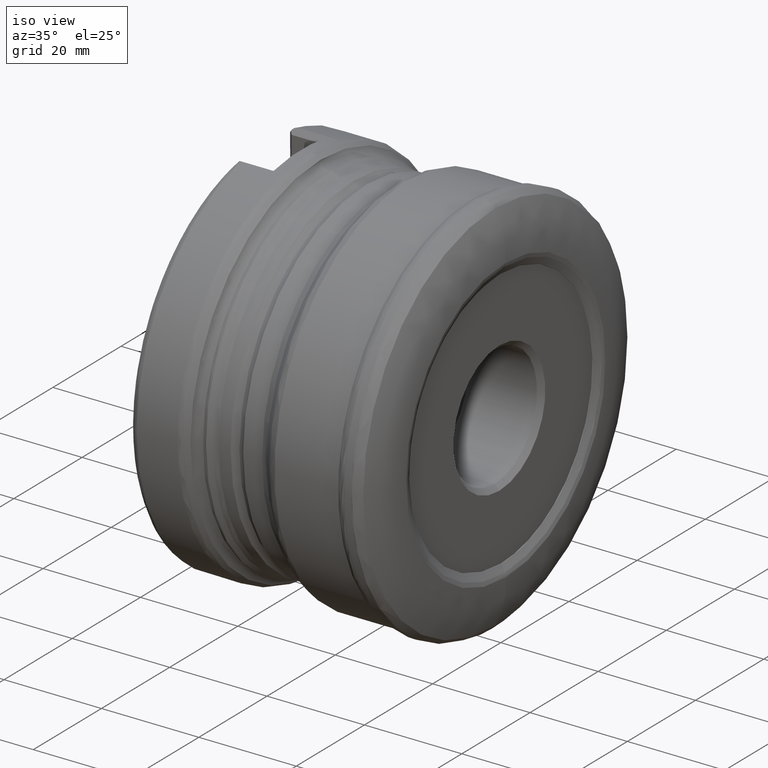
[diagram: clean part render]
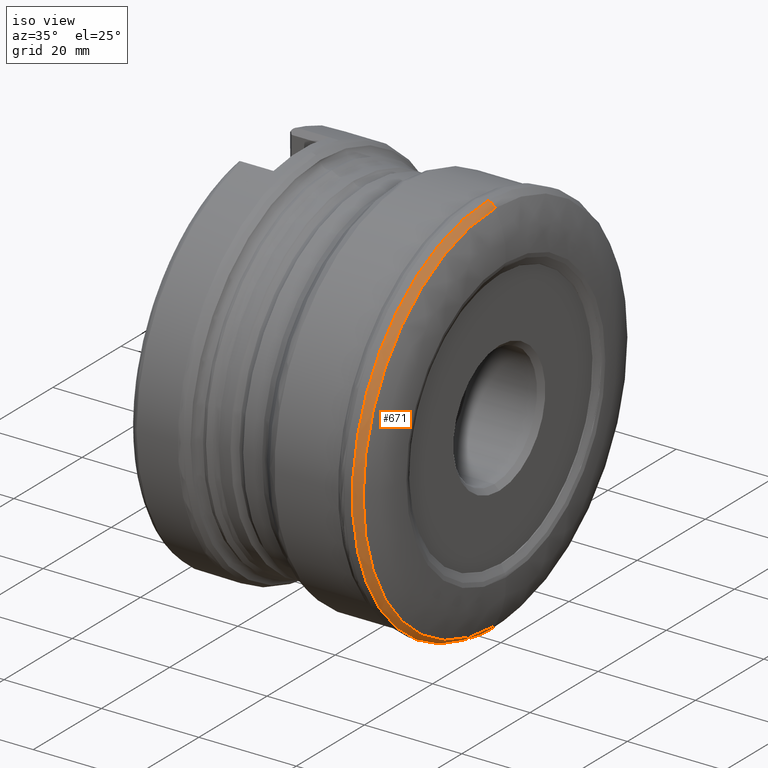
[diagram: same view with one face highlighted and labeled with its STEP entity id]
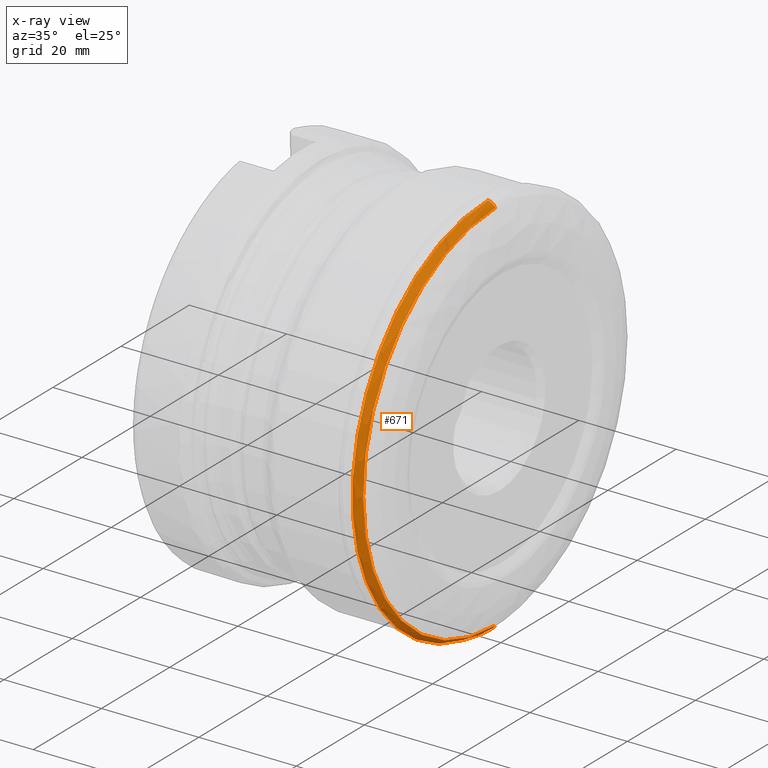
[diagram: x-ray of the same camera — body ghosted, the highlighted face saturated]
A machine part, iso view. The second image highlights one B-rep face of the part: STEP entity #671.
The next image is the same camera in x-ray: the body ghosted, the highlighted face saturated — about 0% of this face is hidden behind the body in this view.
In plain terms, the highlighted face is a freeform B-spline surface patch.
Its self-contained STEP definition (entity closure, byte-faithful):
#137 = CARTESIAN_POINT ( 'NONE',  ( -2.633229503952312800, 0.0000000000000000000, -39.73581911877664700 ) ) ;
#157 = CARTESIAN_POINT ( 'NONE',  ( -1.134146960454002400, 0.0000000000000000000, 0.0000000000000000000 ) ) ;
#170 = DIRECTION ( 'NONE',  ( -1.000000000000000000, 8.391831888434152500E-018, -0.0000000000000000000 ) ) ;
#190 = DIRECTION ( 'NONE',  ( -5.594554592330477600E-018, -1.000000000000000000, 0.0000000000000000000 ) ) ;
#201 = CARTESIAN_POINT ( 'NONE',  ( -2.032839467000000100, 0.0000000000000000000, -39.74618354500000800 ) ) ;
#214 = EDGE_LOOP ( 'NONE', ( #1904, #315, #2088, #1975 ) ) ;
#215 = VERTEX_POINT ( 'NONE', #1797 ) ;
#315 = ORIENTED_EDGE ( 'NONE', *, *, #1644, .T. ) ;
#433 = CARTESIAN_POINT ( 'NONE',  ( -2.827194771000000700, -79.49062436400004100, -39.74531218200002100 ) ) ;
#458 = CARTESIAN_POINT ( 'NONE',  ( -2.633229503964266800, 0.0000000000000000000, 0.0000000000000000000 ) ) ;
#470 = DIRECTION ( 'NONE',  ( -1.000000000000000000, 5.457052083158121700E-018, -0.0000000000000000000 ) ) ;
#477 = DIRECTION ( 'NONE',  ( -1.091410416625564900E-017, -1.000000000000000000, 0.0000000000000000000 ) ) ;
#528 = VERTEX_POINT ( 'NONE', #1486 ) ;
#643 = CIRCLE ( 'NONE', #733, 38.75919537801372200 ) ;
#671 = ADVANCED_FACE ( 'NONE', ( #1232 ), #1772, .T. ) ;
#733 = AXIS2_PLACEMENT_3D ( 'NONE', #157, #170, #190 ) ;
#786 = CARTESIAN_POINT ( 'NONE',  ( -1.991726685368774500, 0.0000000000000000000, 39.67216484230573300 ) ) ;
#850 = EDGE_CURVE ( 'NONE', #2416, #528, #2346, .T. ) ;
#975 = CARTESIAN_POINT ( 'NONE',  ( -2.633229503954305400, 0.0000000000000000000, 39.73581911878244500 ) ) ;
#1019 = CARTESIAN_POINT ( 'NONE',  ( -2.032839466999999600, -79.49236709000000200, -39.74618354500000100 ) ) ;
#1043 = AXIS2_PLACEMENT_3D ( 'NONE', #458, #470, #477 ) ;
#1224 = CARTESIAN_POINT ( 'NONE',  ( -1.451587148078123300, 0.0000000000000000000, 39.32027421612119200 ) ) ;
#1232 = FACE_OUTER_BOUND ( 'NONE', #214, .T. ) ;
#1233 = CARTESIAN_POINT ( 'NONE',  ( -1.134146961259572700, 0.0000000000000000000, 38.75919537912700000 ) ) ;
#1255 = CARTESIAN_POINT ( 'NONE',  ( -2.032839466999999600, -79.49236709000000200, 39.74618354500000100 ) ) ;
#1292 = CARTESIAN_POINT ( 'NONE',  ( -2.827194771000000700, 0.0000000000000000000, 39.74531218200002100 ) ) ;
#1305 = CARTESIAN_POINT ( 'NONE',  ( -2.827194771000000700, -79.49062436400004100, 39.74531218200002100 ) ) ;
#1486 = CARTESIAN_POINT ( 'NONE',  ( -1.134146961259572700, 0.0000000000000000000, 38.75919537912700000 ) ) ;
#1644 = EDGE_CURVE ( 'NONE', #215, #528, #643, .T. ) ;
#1663 = VERTEX_POINT ( 'NONE', #137 ) ;
#1772 =( BOUNDED_SURFACE ( )  B_SPLINE_SURFACE ( 3, 3, ( 
 ( #2554, #2510, #2563, #2733 ),
 ( #2744, #2758, #2769, #2780 ),
 ( #2788, #1255, #1019, #201 ),
 ( #1292, #1305, #433, #2549 ) ),
 .UNSPECIFIED., .F., .F., .F. ) 
 B_SPLINE_SURFACE_WITH_KNOTS ( ( 4, 4 ),
 ( 4, 4 ),
 ( 0.0000000000000000000, 1.000000000000000000 ),
 ( 0.0000000000000000000, 1.000000000000000000 ),
 .UNSPECIFIED. ) 
 GEOMETRIC_REPRESENTATION_ITEM ( )  RATIONAL_B_SPLINE_SURFACE ( (
 ( 1.000000000000000000, 0.3333333333333330400, 0.3333333333333330400, 1.000000000000000000),
 ( 0.8915179184014110400, 0.2971726394671370100, 0.2971726394671370100, 0.8915179184014110400),
 ( 0.8915179184014110400, 0.2971726394671370100, 0.2971726394671370100, 0.8915179184014110400),
 ( 1.000000000000000000, 0.3333333333333330400, 0.3333333333333330400, 1.000000000000000000) ) ) 
 REPRESENTATION_ITEM ( '' )  SURFACE ( )  );
#1797 = CARTESIAN_POINT ( 'NONE',  ( -1.134146961420686500, 0.0000000000000000000, -38.75919537934964900 ) ) ;
#1904 = ORIENTED_EDGE ( 'NONE', *, *, #2603, .F. ) ;
#1975 = ORIENTED_EDGE ( 'NONE', *, *, #2066, .F. ) ;
#2066 = EDGE_CURVE ( 'NONE', #1663, #2416, #2651, .T. ) ;
#2088 = ORIENTED_EDGE ( 'NONE', *, *, #850, .F. ) ;
#2177 = CARTESIAN_POINT ( 'NONE',  ( -2.633229503952312800, 0.0000000000000000000, -39.73581911877664700 ) ) ;
#2185 = CARTESIAN_POINT ( 'NONE',  ( -1.991726685473085700, 0.0000000000000000000, -39.67216484231521200 ) ) ;
#2193 = CARTESIAN_POINT ( 'NONE',  ( -1.134146961420686500, 0.0000000000000000000, -38.75919537934964900 ) ) ;
#2215 = CARTESIAN_POINT ( 'NONE',  ( -1.451587148242542200, 0.0000000000000000000, -39.32027421622774500 ) ) ;
#2346 =( BOUNDED_CURVE ( )  B_SPLINE_CURVE ( 3, ( #975, #786, #1224, #1233 ),
 .UNSPECIFIED., .F., .F. ) 
 B_SPLINE_CURVE_WITH_KNOTS ( ( 4, 4 ),
 ( 0.09017789999648592700, 0.9098220993743823000 ),
 .UNSPECIFIED. ) 
 CURVE ( )  GEOMETRIC_REPRESENTATION_ITEM ( )  RATIONAL_B_SPLINE_CURVE ( ( 0.9732984874047218000, 0.9004184226557772100, 0.9004184225998368400, 0.9732984872369010400 ) ) 
 REPRESENTATION_ITEM ( '' )  );
#2360 = CARTESIAN_POINT ( 'NONE',  ( -2.633229503954305400, 0.0000000000000000000, 39.73581911878244500 ) ) ;
#2416 = VERTEX_POINT ( 'NONE', #2360 ) ;
#2510 = CARTESIAN_POINT ( 'NONE',  ( -1.047087289999999900, -77.17121208899999400, 38.58560604400000200 ) ) ;
#2549 = CARTESIAN_POINT ( 'NONE',  ( -2.827194771000000700, 0.0000000000000000000, -39.74531218200002100 ) ) ;
#2554 = CARTESIAN_POINT ( 'NONE',  ( -1.047087289999999900, 0.0000000000000000000, 38.58560604400000200 ) ) ;
#2563 = CARTESIAN_POINT ( 'NONE',  ( -1.047087289999999900, -77.17121208899999400, -38.58560604400000200 ) ) ;
#2575 =( BOUNDED_CURVE ( )  B_SPLINE_CURVE ( 3, ( #2193, #2215, #2185, #2177 ),
 .UNSPECIFIED., .F., .F. ) 
 B_SPLINE_CURVE_WITH_KNOTS ( ( 4, 4 ),
 ( 0.09017790075074025300, 0.9098221000023430900 ),
 .UNSPECIFIED. ) 
 CURVE ( )  GEOMETRIC_REPRESENTATION_ITEM ( )  RATIONAL_B_SPLINE_CURVE ( ( 0.9732984872035244100, 0.9004184225999412000, 0.9004184226669028600, 0.9732984874044095000 ) ) 
 REPRESENTATION_ITEM ( '' )  );
#2603 = EDGE_CURVE ( 'NONE', #215, #1663, #2575, .T. ) ;
#2651 = CIRCLE ( 'NONE', #1043, 39.73581911881152700 ) ;
#2733 = CARTESIAN_POINT ( 'NONE',  ( -1.047087289999999900, 0.0000000000000000000, -38.58560604400000200 ) ) ;
#2744 = CARTESIAN_POINT ( 'NONE',  ( -1.367267695999999900, 0.0000000000000000000, 39.31257620600001000 ) ) ;
#2758 = CARTESIAN_POINT ( 'NONE',  ( -1.367267695999999900, -78.62515241099997400, 39.31257620600000300 ) ) ;
#2769 = CARTESIAN_POINT ( 'NONE',  ( -1.367267695999999900, -78.62515241099997400, -39.31257620600000300 ) ) ;
#2780 = CARTESIAN_POINT ( 'NONE',  ( -1.367267695999999900, 0.0000000000000000000, -39.31257620600001000 ) ) ;
#2788 = CARTESIAN_POINT ( 'NONE',  ( -2.032839467000000100, 0.0000000000000000000, 39.74618354500000800 ) ) ;